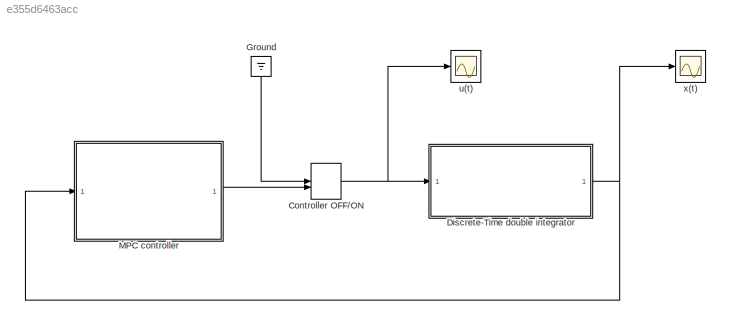
MODEL slx_e355d6463acc
KIND model
CONFIG AbsTol = auto
CONFIG EnableMultiTasking = off
CONFIG FixedStep = 1
CONFIG MaxStep = auto
CONFIG MinStep = auto
CONFIG RelTol = 1e-3
CONFIG SampleTimeConstraint = Unconstrained
CONFIG SolverName = FixedStepDiscrete
CONFIG StartTime = 0.0
CONFIG StopTime = 40
BLOCK [ManualSwitch] Controller OFF//ON
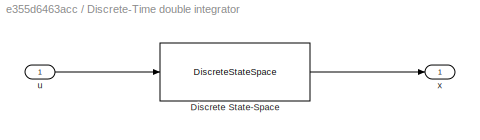
BLOCK [SubSystem] Discrete-Time double integrator
BLOCK [DiscreteStateSpace] Discrete-Time double integrator/Discrete State-Space
  A = A
  B = B
  C = eye(2)
  D = zeros(2,1)
  InitialCondition = x0
  SampleTime = -1
BLOCK [Inport] Discrete-Time double integrator/u
BLOCK [Outport] Discrete-Time double integrator/x
BLOCK [Ground] Ground
  NameLocation = left
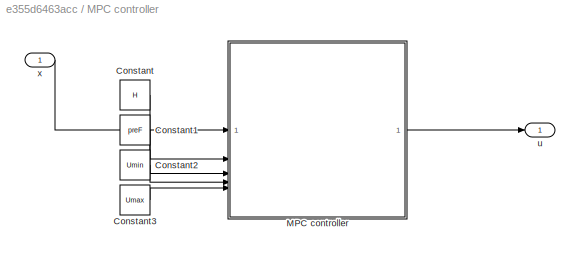
BLOCK [SubSystem] MPC controller
BLOCK [Constant] MPC controller/Constant
  Value = H
  VectorParams1D = off
BLOCK [Constant] MPC controller/Constant1
  Value = preF
  VectorParams1D = off
BLOCK [Constant] MPC controller/Constant2
  Value = Umin
  VectorParams1D = off
BLOCK [Constant] MPC controller/Constant3
  Value = Umax
  VectorParams1D = off
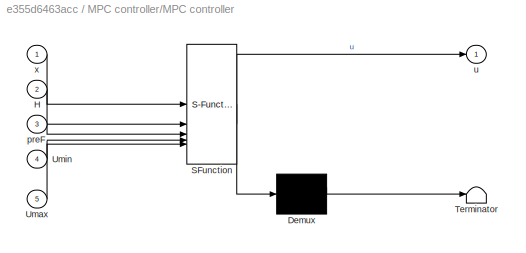
BLOCK [SubSystem] MPC controller/MPC controller
  ErrorFcn = Stateflow.Translate.translate
  PermitHierarchicalResolution = ExplicitOnly
  SFBlockType = MATLAB Function
  TreatAsAtomicUnit = on
BLOCK [Demux] MPC controller/MPC controller/ Demux 
  Outputs = 1
BLOCK [S-Function] MPC controller/MPC controller/ SFunction 
  EnableBusSupport = on
  FunctionName = sf_sfun
  PortCounts = [5 2]
  SFcnIsStateOwnerBlock = off
  SFunctionDeploymentMode = off
  Tag = Stateflow S-Function 2
BLOCK [Terminator] MPC controller/MPC controller/ Terminator 
BLOCK [Inport] MPC controller/MPC controller/H
  Port = 2
BLOCK [Inport] MPC controller/MPC controller/Umax
  Port = 5
BLOCK [Inport] MPC controller/MPC controller/Umin
  Port = 4
BLOCK [Inport] MPC controller/MPC controller/preF
  Port = 3
BLOCK [Outport] MPC controller/MPC controller/u
BLOCK [Inport] MPC controller/MPC controller/x
BLOCK [Outport] MPC controller/u
BLOCK [Inport] MPC controller/x
BLOCK [Scope] u(t)
  Floating = off
  NumInputPorts = 1
  ScopeSpecificationString = Simulink.scopes.TimeScopeBlockCfg('CurrentConfiguration', extmgr.ConfigurationSet(extmgr.Configuration('Core','General UI',true),extmgr.Configuration('Core','Source UI',true),extmgr.Configuration('Sources','WiredSimulink',true,'DataLoggingVariableName','ScopeData1'),extmgr.Configuration('Visuals','Time Domain',true,'SerializedDisplays',{struct('MinYLimReal','-1.25','MaxYLimReal','1.25','YLabelReal...<+1413ch>
BLOCK [Scope] x(t)
  Floating = off
  NumInputPorts = 1
  ScopeSpecificationString = Simulink.scopes.TimeScopeBlockCfg('CurrentConfiguration', extmgr.ConfigurationSet(extmgr.Configuration('Core','General UI',true),extmgr.Configuration('Core','Source UI',true),extmgr.Configuration('Sources','WiredSimulink',true),extmgr.Configuration('Visuals','Time Domain',true,'SerializedDisplays',{struct('MinYLimReal','-7.59091','MaxYLimReal','11.95455','YLabelReal','','MinYLimMag','0.00000','Max...<+1448ch>
NET Controller OFF//ON:1 -> Discrete-Time double integrator:1, u(t):1
LINE Discrete-Time double integrator/Discrete State-Space:1 -> Discrete-Time double integrator/x:1
LINE Discrete-Time double integrator/u:1 -> Discrete-Time double integrator/Discrete State-Space:1
NET Discrete-Time double integrator:1 -> MPC controller:1, x(t):1
LINE Ground:1 -> Controller OFF//ON:1
LINE MPC controller/Constant1:1 -> MPC controller/MPC controller:3
LINE MPC controller/Constant2:1 -> MPC controller/MPC controller:4
LINE MPC controller/Constant3:1 -> MPC controller/MPC controller:5
LINE MPC controller/Constant:1 -> MPC controller/MPC controller:2
LINE MPC controller/MPC controller:1 -> MPC controller/u:1
LINE MPC controller/x:1 -> MPC controller/MPC controller:1
LINE MPC controller:1 -> Controller OFF//ON:2
note: NET lines group one-source signal fan-out (src -> all destinations, sorted); 1:1 wires keep LINE
CHART MPC controller/MPC controller states=1 transitions=1
  STATE_LABEL 'eML_blk_kernel()'
  STATE_LABEL "SCRIPT:\nfunction u = fcn(x,H,preF,Umin,Umax)\n\n\n% compute F matrix using preF matrix (defined offline)\nF = (2*x'*preF)';\n\n% make sure result of optimization is not displayed\noptions = optimoptions('quadprog','Display','off','Algorithm','active-set');\n\n% compute optimal vector Ustar\nUstar = quadprog(H,F,[],[],[],[],Umin,Umax,zeros(3,1),options);\n% select current input\nu = Ustar(1,1);"
CHART  states=0 transitions=0
